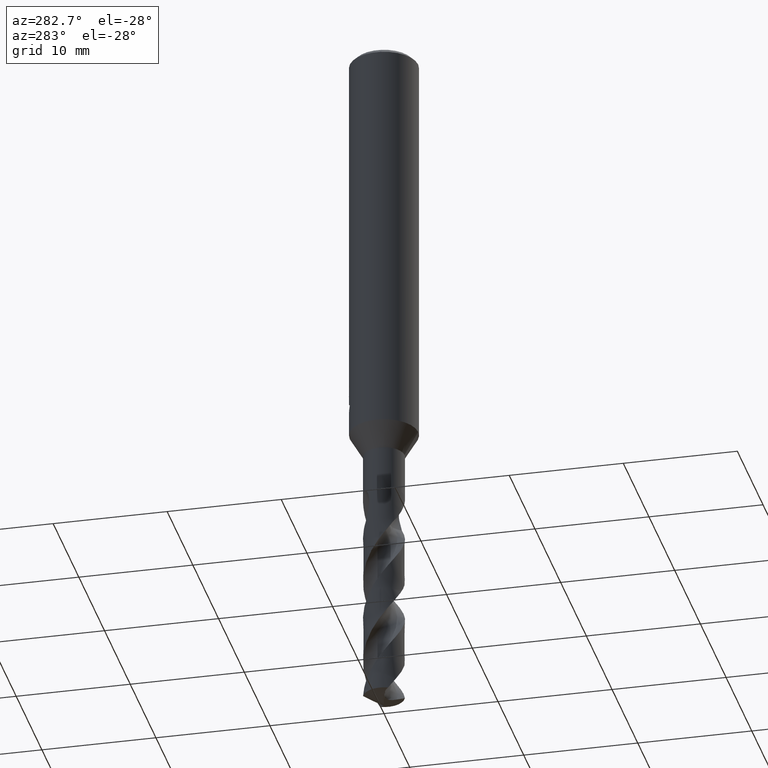
[diagram: clean part render]
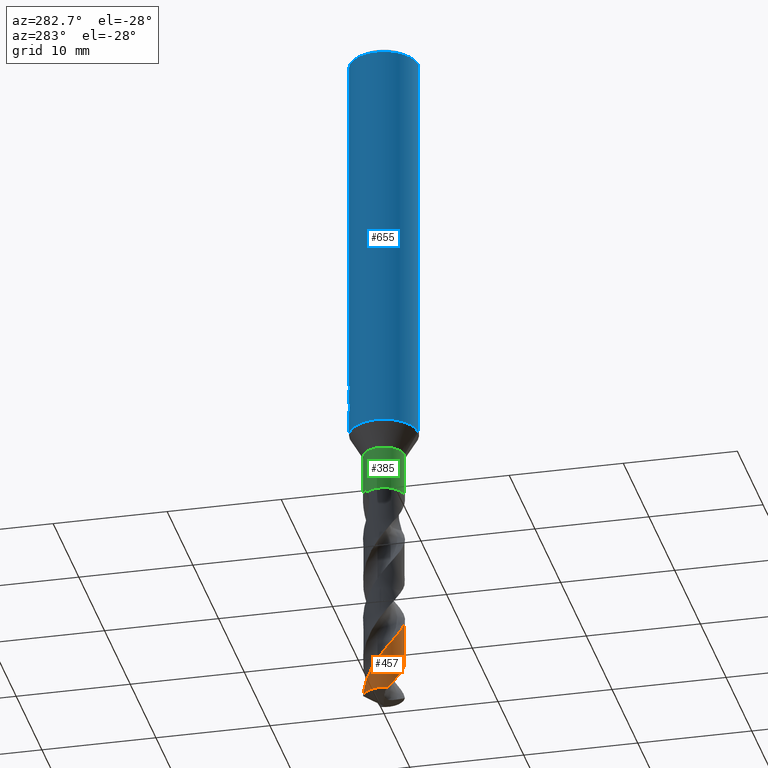
[diagram: same view with three faces highlighted in distinct colors, each labeled with its STEP entity id]
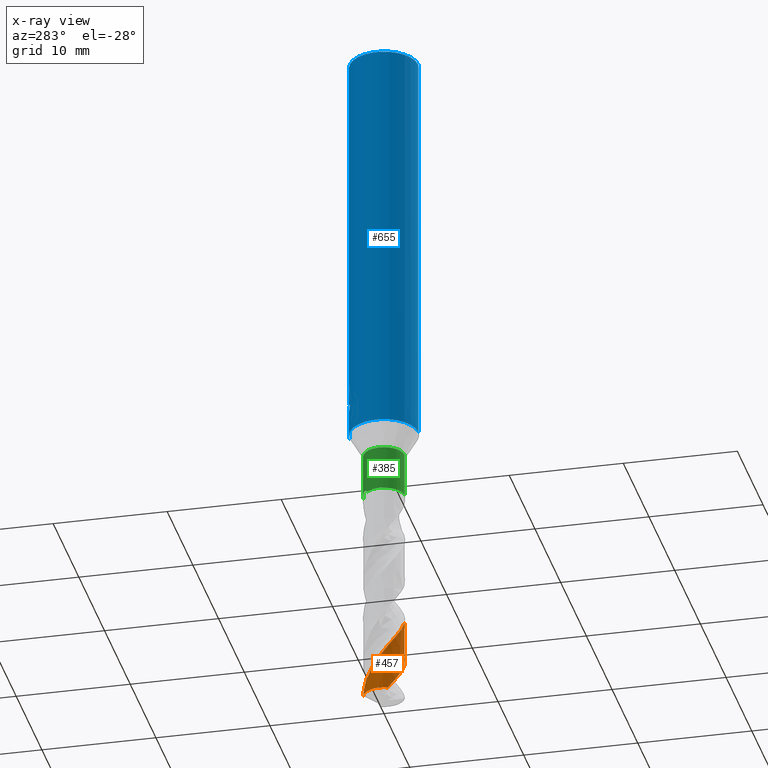
[diagram: x-ray of the same camera — body ghosted, the three highlighted faces saturated]
A machine part, auxiliary view with three faces highlighted in distinct colors.
The next image is the same camera in x-ray (body ghosted, the three faces saturated) — at least one of them is partly hidden behind the body in this view.
Their STEP definitions:

[orange] entity #457 — the highlighted conical surface has half-angle 0 deg.
#379=VERTEX_POINT('',#881);
#391=EDGE_CURVE('',#409,#709,#895,.T.);
#409=VERTEX_POINT('',#915);
#457=ADVANCED_FACE('',(#966),#967,.T.);
#617=EDGE_CURVE('',#653,#409,#1139,.T.);
#653=VERTEX_POINT('',#1177);
#663=EDGE_CURVE('',#653,#379,#1189,.T.);
#687=EDGE_CURVE('',#709,#379,#1216,.T.);
#709=VERTEX_POINT('',#1240);
#881=CARTESIAN_POINT('',(-0.580592727958854,1.703793439429,-61.3448535783208));
#895=LINE('',#2344,#2345);
#915=CARTESIAN_POINT('',(1.54432829102446E-013,-1.79998520870991,-58.4835001682653));
#966=FACE_OUTER_BOUND('',#2659,.T.);
#967=CONICAL_SURFACE('',#2660,1.79995,5.16933351778713E-006);
#1139=B_SPLINE_CURVE_WITH_KNOTS('',3,(#3546,#3547,#3548,#3549,#3550,#3551,#3552,#3553,#3554,#3555,#3556,#3557,#3558,#3559,#3560,#3561,#3562,#3563,#3564,#3565,#3566,#3567,#3568,#3569,#3570,#3571,#3572,#3573,#3574,#3575,#3576,#3577,#3578,#3579,#3580,#3581,#3582,#3583,#3584,#3585,#3586,#3587,#3588,#3589,#3590,#3591,#3592,#3593,#3594,#3595,#3596,#3597,#3598,#3599,#3600,#3601,#3602,#3603,#3604,#3605,#3606,#3607,#3608,#3609,#3610,#3611,#3612,#3613,#3614,#3615,#3616,#3617,#3618,#3619,#3620,#3621,#3622,#3623,#3624,#3625,#3626,#3627,#3628,#3629,#3630,#3631),.UNSPECIFIED.,.F.,.F.,(4,2,2,2,2,2,2,2,2,2,2,2,2,2,2,2,2,2,2,2,2,2,2,2,2,2,2,2,2,2,2,2,2,2,2,2,2,2,2,2,2,2,4),(0.0,1.12411938036322,1.49324315704113,1.74453484574494,1.94282180091867,3.12705528991454,3.33654301239007,3.95056891416491,4.29934719736765,4.79735921376205,5.45424133829332,6.06638189493079,6.68732988189182,7.03621234367762,7.5130802149083,8.51715431163137,8.61247286430807,9.8791590155175,9.97483264010817,11.2588728954634,11.3581590474799,12.023501562368,12.3548440012357,12.8572270642529,13.5478783817825,14.2140701310191,14.8728094680683,15.1574742927351,15.5829827516386,16.1999208734387,16.9304378066444,18.6258990346717,18.8534289403823,19.1928745820494,19.5643500056512,19.8131056433637,20.0457090619538,20.178211271906,20.2571943623207,20.3322287400588,20.43500247704,20.6530979104347,20.9221348459928),.UNSPECIFIED.);
#1177=CARTESIAN_POINT('',(-1.64813797036207,-0.723630589908135,-61.3448535783208));
#1189=CIRCLE('',#3716,1.8);
#1216=B_SPLINE_CURVE_WITH_KNOTS('',3,(#4371,#4372,#4373,#4374,#4375,#4376,#4377,#4378,#4379,#4380,#4381,#4382,#4383,#4384,#4385,#4386,#4387,#4388,#4389,#4390,#4391,#4392,#4393,#4394,#4395,#4396,#4397,#4398,#4399,#4400,#4401,#4402,#4403,#4404,#4405,#4406,#4407,#4408,#4409,#4410,#4411,#4412,#4413,#4414,#4415,#4416,#4417,#4418,#4419,#4420,#4421,#4422,#4423,#4424,#4425,#4426,#4427,#4428,#4429,#4430,#4431,#4432,#4433,#4434,#4435,#4436,#4437,#4438,#4439,#4440,#4441,#4442,#4443,#4444,#4445,#4446,#4447,#4448,#4449,#4450,#4451,#4452,#4453,#4454,#4455,#4456,#4457,#4458,#4459,#4460,#4461,#4462),.UNSPECIFIED.,.F.,.F.,(4,2,2,2,2,2,2,2,2,2,2,2,2,2,2,2,2,2,2,2,2,2,2,2,2,2,2,2,2,2,2,2,2,2,2,2,2,2,2,2,2,2,2,2,2,4),(0.0,0.0801275728356934,0.130640581271298,0.152770367560535,0.364242791769353,0.436986929266372,0.483223075265851,0.526425984111781,0.584005423472898,0.64787631398162,0.711979466175985,0.937580127871979,1.09061263745437,1.24729845891459,1.41532175623204,1.85228257452561,2.28668484765657,3.88904521678665,4.19995671742326,4.83198279183286,5.34008231756774,5.41199511941395,6.4894051909236,6.86720263610227,7.52038772077632,8.02813889238809,8.06407526817173,9.08928789291321,9.5281073355874,10.1611718763682,11.1740732910324,11.6763649494397,12.6696582946601,13.1752127393228,13.5562524910559,14.2031650488221,14.7103302923921,14.7829546060452,15.8480917383284,16.230617229164,16.8729634825393,17.804559745901,18.4974868234268,19.0192346383442,19.806682905026,20.6024096482353),.UNSPECIFIED.);
#1240=CARTESIAN_POINT('',(1.93326473997876E-011,-1.79996406285208,-54.3928649318378));
#2344=CARTESIAN_POINT('',(2.23653047416734E-016,-1.79995,-51.6724267891604));
#2345=VECTOR('',#5316,1.0);
#2659=EDGE_LOOP('',(#5398,#5399,#5400,#5401));
#2660=AXIS2_PLACEMENT_3D('',#5402,#5403,#5404);
#3546=CARTESIAN_POINT('',(-1.64813797036206,-0.723630589908148,-61.3448535783208));
#3547=CARTESIAN_POINT('',(-1.55907774788649,-0.92646988992758,-61.0426459900695));
#3548=CARTESIAN_POINT('',(-1.43361391478408,-1.11064020517116,-60.7372898041585));
#3549=CARTESIAN_POINT('',(-1.22702119732803,-1.31896174919522,-60.3355519989796));
#3550=CARTESIAN_POINT('',(-1.17289139852565,-1.36731948228192,-60.236534160926));
#3551=CARTESIAN_POINT('',(-1.0772716460219,-1.44287860706178,-60.0696093073097));
#3552=CARTESIAN_POINT('',(-1.03736579050346,-1.47182444548981,-60.0020378104356));
#3553=CARTESIAN_POINT('',(-0.964069567802687,-1.52054246158198,-59.8808563086614));
#3554=CARTESIAN_POINT('',(-0.93113180372499,-1.54092981920663,-59.8272911324396));
#3555=CARTESIAN_POINT('',(-0.69711010113258,-1.67555463476553,-59.4549919737755));
#3556=CARTESIAN_POINT('',(-0.476568229454699,-1.75104681221587,-59.1447401808734));
#3557=CARTESIAN_POINT('',(-0.207389769483681,-1.7884658751184,-58.7698019530655));
#3558=CARTESIAN_POINT('',(-0.166796640270785,-1.79270907325249,-58.7133098845063));
#3559=CARTESIAN_POINT('',(-0.00626075828157309,-1.80396947871984,-58.49145692073));
#3560=CARTESIAN_POINT('',(0.114251174413892,-1.80039820326396,-58.3273866342543));
#3561=CARTESIAN_POINT('',(0.301744093499417,-1.77583271316578,-58.0688170313883));
#3562=CARTESIAN_POINT('',(0.36901159383645,-1.76307552141418,-57.9753343367017));
#3563=CARTESIAN_POINT('',(0.529958997167464,-1.72296049452636,-57.747603781038));
#3564=CARTESIAN_POINT('',(0.6223506812157,-1.69177452946414,-57.6128203544186));
#3565=CARTESIAN_POINT('',(0.829853683870008,-1.602429315277,-57.3022338101806));
#3566=CARTESIAN_POINT('',(0.942227235901725,-1.53906640147755,-57.1271909055034));
#3567=CARTESIAN_POINT('',(1.14466643691986,-1.39429773520166,-56.7865306581728));
#3568=CARTESIAN_POINT('',(1.2348746106617,-1.31500729795,-56.6212696612529));
#3569=CARTESIAN_POINT('',(1.39887324829514,-1.13917509743918,-56.290217351832));
#3570=CARTESIAN_POINT('',(1.47246885862468,-1.04236222166026,-56.1248811290354));
#3571=CARTESIAN_POINT('',(1.5714856640054,-0.880339030140718,-55.8651874296132));
#3572=CARTESIAN_POINT('',(1.60369860560651,-0.820171623670064,-55.7719321673608));
#3573=CARTESIAN_POINT('',(1.67158965301551,-0.674046371438702,-55.5504194922057));
#3574=CARTESIAN_POINT('',(1.70417574237739,-0.586812835556721,-55.4216883117955));
#3575=CARTESIAN_POINT('',(1.78408656194754,-0.308828228461722,-55.0242991885647));
#3576=CARTESIAN_POINT('',(1.80700792806774,-0.113051385317736,-54.7601235778661));
#3577=CARTESIAN_POINT('',(1.79724253670254,0.100674314416281,-54.464797842195));
#3578=CARTESIAN_POINT('',(1.79611198269064,0.119145258823308,-54.4391911753532));
#3579=CARTESIAN_POINT('',(1.77589961882218,0.382759052938424,-54.0739117752759));
#3580=CARTESIAN_POINT('',(1.70713412242742,0.621195261158978,-53.7447950254864));
#3581=CARTESIAN_POINT('',(1.58406131081425,0.854953641921537,-53.3800619306313));
#3582=CARTESIAN_POINT('',(1.57518603792353,0.871196620125842,-53.354447770689));
#3583=CARTESIAN_POINT('',(1.44346459283544,1.10367178745066,-52.985340507672));
#3584=CARTESIAN_POINT('',(1.27758639211249,1.29199537482523,-52.6527761163337));
#3585=CARTESIAN_POINT('',(1.06348167000705,1.45231079658459,-52.2832415320888));
#3586=CARTESIAN_POINT('',(1.04793811510445,1.46356683984874,-52.2566917113052));
#3587=CARTESIAN_POINT('',(0.926360997996077,1.54866292825599,-52.0518136932591));
#3588=CARTESIAN_POINT('',(0.812630771308074,1.61131196435716,-51.8751696191065));
#3589=CARTESIAN_POINT('',(0.633043546631002,1.68619657055166,-51.6090953218797));
#3590=CARTESIAN_POINT('',(0.572105210489127,1.70782878245848,-51.5207987404292));
#3591=CARTESIAN_POINT('',(0.416352232751806,1.75386480704476,-51.2979778131649));
#3592=CARTESIAN_POINT('',(0.320616441671899,1.77384809253672,-51.1628550080548));
#3593=CARTESIAN_POINT('',(0.0906912718115085,1.80265765319494,-50.8440480833338));
#3594=CARTESIAN_POINT('',(-0.0440361777720671,1.8044299102622,-50.6613287782073));
#3595=CARTESIAN_POINT('',(-0.307087728698379,1.77829614584792,-50.2995364678267));
#3596=CARTESIAN_POINT('',(-0.434201365832459,1.7515558050323,-50.1208102855282));
#3597=CARTESIAN_POINT('',(-0.67850276396783,1.67204507229003,-49.7673738095596));
#3598=CARTESIAN_POINT('',(-0.795580443932835,1.61964522258583,-49.5932281148711));
#3599=CARTESIAN_POINT('',(-0.954122997688022,1.52724974481075,-49.3421001825572));
#3600=CARTESIAN_POINT('',(-1.00057374278275,1.49722200322002,-49.266393213726));
#3601=CARTESIAN_POINT('',(-1.1126578389655,1.41724053350639,-49.0770273807366));
#3602=CARTESIAN_POINT('',(-1.17634444146857,1.36484337336488,-48.9629565202176));
#3603=CARTESIAN_POINT('',(-1.32331998656484,1.22593351275078,-48.6849245497431));
#3604=CARTESIAN_POINT('',(-1.4020038617771,1.13514617396907,-48.5217411879596));
#3605=CARTESIAN_POINT('',(-1.55306036925771,0.920848946939103,-48.1630825238164));
#3606=CARTESIAN_POINT('',(-1.62070925298458,0.795633677827889,-47.9674564492609));
#3607=CARTESIAN_POINT('',(-1.79394308137507,0.359351703532186,-47.3212522313856));
#3608=CARTESIAN_POINT('',(-1.82916127274988,0.0274158912374177,-46.8842788998041));
#3609=CARTESIAN_POINT('',(-1.76838534328388,-0.338317881233773,-46.3720098597111));
#3610=CARTESIAN_POINT('',(-1.75964601977304,-0.381170905024912,-46.3112432143355));
#3611=CARTESIAN_POINT('',(-1.73390115264819,-0.487430986923653,-46.1602724415822));
#3612=CARTESIAN_POINT('',(-1.71493022078593,-0.550576660948558,-46.0700944747612));
#3613=CARTESIAN_POINT('',(-1.66759310957754,-0.681263887643777,-45.8821353355285));
#3614=CARTESIAN_POINT('',(-1.63974934449616,-0.745603993135924,-45.7900436504507));
#3615=CARTESIAN_POINT('',(-1.58674071287272,-0.850999591570335,-45.6305203984968));
#3616=CARTESIAN_POINT('',(-1.56416338479961,-0.891734079052297,-45.5664056230913));
#3617=CARTESIAN_POINT('',(-1.51840729235638,-0.967455973217168,-45.4404579157813));
#3618=CARTESIAN_POINT('',(-1.49554078211119,-1.00235338128326,-45.3792260572209));
#3619=CARTESIAN_POINT('',(-1.45883778533634,-1.05452801995454,-45.2814146510169));
#3620=CARTESIAN_POINT('',(-1.45015563457819,-1.06640094373626,-45.2576599033874));
#3621=CARTESIAN_POINT('',(-1.42950922616035,-1.09378567123989,-45.2059171814158));
#3622=CARTESIAN_POINT('',(-1.42155865067872,-1.10410440490966,-45.1867678472282));
#3623=CARTESIAN_POINT('',(-1.40552953027712,-1.12443070231839,-45.1497093087356));
#3624=CARTESIAN_POINT('',(-1.39749099480729,-1.1344104828473,-45.1318178719731));
#3625=CARTESIAN_POINT('',(-1.37784882043911,-1.15825253757473,-45.0897592135649));
#3626=CARTESIAN_POINT('',(-1.36605141261273,-1.17215534179693,-45.06577188255));
#3627=CARTESIAN_POINT('',(-1.32769364099066,-1.21593189806655,-44.9917524974143));
#3628=CARTESIAN_POINT('',(-1.29960810623403,-1.24601467028369,-44.943056143609));
#3629=CARTESIAN_POINT('',(-1.23169083818281,-1.31355582956116,-44.837019249382));
#3630=CARTESIAN_POINT('',(-1.19104119266214,-1.35069751416398,-44.7809382177849));
#3631=CARTESIAN_POINT('',(-1.14696331556465,-1.38714307159205,-44.7266));
#3716=AXIS2_PLACEMENT_3D('',#5644,#5645,#5646);
#4371=CARTESIAN_POINT('',(-1.25107846384555,1.29402218899784,-44.7266));
#4372=CARTESIAN_POINT('',(-1.24027997315074,1.30446247723825,-44.7486856030282));
#4373=CARTESIAN_POINT('',(-1.22931985899429,1.31479805987491,-44.770741940663));
#4374=CARTESIAN_POINT('',(-1.21112952030387,1.33152123625317,-44.8066507058394));
#4375=CARTESIAN_POINT('',(-1.20402683326182,1.33794784889731,-44.8205053007073));
#4376=CARTESIAN_POINT('',(-1.19369278018802,1.34714816521415,-44.840408565273));
#4377=CARTESIAN_POINT('',(-1.19053018046315,1.34994398135344,-44.8464661610803));
#4378=CARTESIAN_POINT('',(-1.15697992201892,1.37939290758704,-44.9103678385539));
#4379=CARTESIAN_POINT('',(-1.12574948806274,1.40503159711375,-44.9667047948314));
#4380=CARTESIAN_POINT('',(-1.08132242832629,1.43897296937848,-45.0429731437794));
#4381=CARTESIAN_POINT('',(-1.06981352638825,1.44755102496615,-45.0624129704402));
#4382=CARTESIAN_POINT('',(-1.05073363354246,1.46141726782043,-45.0941929911817));
#4383=CARTESIAN_POINT('',(-1.04326662140661,1.4667573666756,-45.1065212586565));
#4384=CARTESIAN_POINT('',(-1.02871559874037,1.47699571458388,-45.1303615402892));
#4385=CARTESIAN_POINT('',(-1.0216450275926,1.48189543218479,-45.1418635278364));
#4386=CARTESIAN_POINT('',(-1.00505162866476,1.4932186458541,-45.1686943669944));
#4387=CARTESIAN_POINT('',(-0.995507011768867,1.49959891529972,-45.1840046647025));
#4388=CARTESIAN_POINT('',(-0.975243171108675,1.5128657789001,-45.2163207799261));
#4389=CARTESIAN_POINT('',(-0.964525549533127,1.51972105296408,-45.2333035952023));
#4390=CARTESIAN_POINT('',(-0.942935684377382,1.53321091839622,-45.2673948177004));
#4391=CARTESIAN_POINT('',(-0.932181788504982,1.53977270350674,-45.2843314228932));
#4392=CARTESIAN_POINT('',(-0.882805814234656,1.56919078380765,-45.3620438079946));
#4393=CARTESIAN_POINT('',(-0.843737429614365,1.59052298104124,-45.4232076540324));
#4394=CARTESIAN_POINT('',(-0.777391191302479,1.6236585127211,-45.5256396948722));
#4395=CARTESIAN_POINT('',(-0.750263648624428,1.63637008695651,-45.5671377068432));
#4396=CARTESIAN_POINT('',(-0.69477608754419,1.66070275909973,-45.651020383976));
#4397=CARTESIAN_POINT('',(-0.666350073345946,1.67231339256699,-45.6934815636537));
#4398=CARTESIAN_POINT('',(-0.606751035829838,1.6948897122226,-45.7812983847883));
#4399=CARTESIAN_POINT('',(-0.575719031953793,1.70568057624154,-45.8262998629498));
#4400=CARTESIAN_POINT('',(-0.462544629126563,1.74158578142141,-45.9888747946772));
#4401=CARTESIAN_POINT('',(-0.379088455427082,1.76163305914027,-46.1057598569263));
#4402=CARTESIAN_POINT('',(-0.210515162809677,1.78959802250242,-46.3400333641579));
#4403=CARTESIAN_POINT('',(-0.125714246723434,1.79753673626182,-46.4571726928985));
#4404=CARTESIAN_POINT('',(0.272565774571205,1.80656304044718,-47.0051248461491));
#4405=CARTESIAN_POINT('',(0.582677163669993,1.73170316361575,-47.4278651026435));
#4406=CARTESIAN_POINT('',(0.912150075500356,1.55288241310251,-47.9420120771048));
#4407=CARTESIAN_POINT('',(0.964134349643687,1.52114983345936,-48.0255148732838));
#4408=CARTESIAN_POINT('',(1.11652214052572,1.41718865794256,-48.2791380234444));
#4409=CARTESIAN_POINT('',(1.21127928594,1.33711923303439,-48.4489430878359));
#4410=CARTESIAN_POINT('',(1.36610806294819,1.1761883757985,-48.75546117606));
#4411=CARTESIAN_POINT('',(1.4290602482175,1.09885022034302,-48.891629060111));
#4412=CARTESIAN_POINT('',(1.49327020872929,1.00504422136788,-49.0474994326812));
#4413=CARTESIAN_POINT('',(1.5010915339852,0.993324841130369,-49.0668211680548));
#4414=CARTESIAN_POINT('',(1.62388653655451,0.80456843900387,-49.3758203885027));
#4415=CARTESIAN_POINT('',(1.70705542658564,0.608591173500975,-49.6642722627178));
#4416=CARTESIAN_POINT('',(1.77089672056618,0.330459389006471,-50.0555433257593));
#4417=CARTESIAN_POINT('',(1.78298521001172,0.257353129290507,-50.1569468416767));
#4418=CARTESIAN_POINT('',(1.8035999081013,0.0564841602595887,-50.4344024448235));
#4419=CARTESIAN_POINT('',(1.80306146960774,-0.0718773539759362,-50.6099825883865));
#4420=CARTESIAN_POINT('',(1.77788320827086,-0.298069436001126,-50.9223133860093));
#4421=CARTESIAN_POINT('',(1.758682554073,-0.395927779319998,-51.0584938044839));
#4422=CARTESIAN_POINT('',(1.7295569126317,-0.498491573460314,-51.2047274072979));
#4423=CARTESIAN_POINT('',(1.7275924330117,-0.505257877377468,-51.2143916477592));
#4424=CARTESIAN_POINT('',(1.66840227081449,-0.704745699690844,-51.4998987247195));
#4425=CARTESIAN_POINT('',(1.57926666135973,-0.886692270422783,-51.7749678868059));
#4426=CARTESIAN_POINT('',(1.41163726958623,-1.12005648430381,-52.1689502920746));
#4427=CARTESIAN_POINT('',(1.35647417462525,-1.18625886668505,-52.2867267828357));
#4428=CARTESIAN_POINT('',(1.21074840916992,-1.33765769818534,-52.5754130267082));
#4429=CARTESIAN_POINT('',(1.11562485281688,-1.41797258877119,-52.7457724443571));
#4430=CARTESIAN_POINT('',(0.848701123769507,-1.59970082643918,-53.1889918377442));
#4431=CARTESIAN_POINT('',(0.66711347020152,-1.68351672253562,-53.4594121475296));
#4432=CARTESIAN_POINT('',(0.38068494713536,-1.761996755098,-53.8676128596576));
#4433=CARTESIAN_POINT('',(0.283692882374468,-1.78019711190531,-54.002667726906));
#4434=CARTESIAN_POINT('',(-0.00829648629090884,-1.81047319803751,-54.4052824610058));
#4435=CARTESIAN_POINT('',(-0.204121966597569,-1.79892881996381,-54.6712144494556));
#4436=CARTESIAN_POINT('',(-0.490888836109649,-1.73457154250139,-55.0749468080224));
#4437=CARTESIAN_POINT('',(-0.585713077924323,-1.70489804761957,-55.2107723943971));
#4438=CARTESIAN_POINT('',(-0.746968443232303,-1.63936716658188,-55.4494183896481));
#4439=CARTESIAN_POINT('',(-0.814397092613209,-1.60693260953116,-55.5517905927933));
#4440=CARTESIAN_POINT('',(-0.99026340093244,-1.50843216362092,-55.8287315705348));
#4441=CARTESIAN_POINT('',(-1.09413211677815,-1.434884856726,-56.0028345646159));
#4442=CARTESIAN_POINT('',(-1.26413173513083,-1.28521766504058,-56.3136743945243));
#4443=CARTESIAN_POINT('',(-1.33326737773708,-1.21335141645174,-56.4498566137454));
#4444=CARTESIAN_POINT('',(-1.40511646764783,-1.12506125472204,-56.6059742084144));
#4445=CARTESIAN_POINT('',(-1.41398141273816,-1.11389941508282,-56.6255259230054));
#4446=CARTESIAN_POINT('',(-1.5507744055079,-0.937399827261559,-56.9320152194358));
#4447=CARTESIAN_POINT('',(-1.64917661896449,-0.750955585474589,-57.2177628447105));
#4448=CARTESIAN_POINT('',(-1.73636596541471,-0.48022094166484,-57.607724608749));
#4449=CARTESIAN_POINT('',(-1.75488498473826,-0.407364727383775,-57.7105714462325));
#4450=CARTESIAN_POINT('',(-1.79216083580235,-0.209729569420195,-57.9868881270495));
#4451=CARTESIAN_POINT('',(-1.80245783696777,-0.0836850975501078,-58.1598958509633));
#4452=CARTESIAN_POINT('',(-1.79517104991919,0.225362787820108,-58.5841348364943));
#4453=CARTESIAN_POINT('',(-1.76299388526116,0.4064619120893,-58.8332487263245));
#4454=CARTESIAN_POINT('',(-1.66038530358428,0.708211517284509,-59.2713983407626));
#4455=CARTESIAN_POINT('',(-1.60214312845797,0.831650797378466,-59.4576129720634));
#4456=CARTESIAN_POINT('',(-1.47650915677744,1.03460301917693,-59.784935270995));
#4457=CARTESIAN_POINT('',(-1.41523180391952,1.11694998150334,-59.9252314559151));
#4458=CARTESIAN_POINT('',(-1.2448569225695,1.30927228921115,-60.2782926668155));
#4459=CARTESIAN_POINT('',(-1.12781808577772,1.41137370641141,-60.4897249391201));
#4460=CARTESIAN_POINT('',(-0.86891792692422,1.58412294119532,-60.9162754521077));
#4461=CARTESIAN_POINT('',(-0.728215360799584,1.65348767870022,-61.1301272405968));
#4462=CARTESIAN_POINT('',(-0.580592727958881,1.70379343942899,-61.3448535783208));
#5316=DIRECTION('',(-6.33039867088091E-022,5.16933351776411E-006,0.999999999986639));
#5398=ORIENTED_EDGE('',*,*,#391,.T.);
#5399=ORIENTED_EDGE('',*,*,#687,.T.);
#5400=ORIENTED_EDGE('',*,*,#663,.F.);
#5401=ORIENTED_EDGE('',*,*,#617,.T.);
#5402=CARTESIAN_POINT('',(0.0,0.0,-51.6724267891604));
#5403=DIRECTION('',(0.0,-0.0,-1.0));
#5404=DIRECTION('',(0.0,1.0,0.0));
#5644=CARTESIAN_POINT('',(0.0,0.0,-61.3448535783208));
#5645=DIRECTION('',(0.0,0.0,-1.0));
#5646=DIRECTION('',(0.0,1.0,0.0));

[blue] entity #655 — the highlighted cylindrical surface (edge-blend (fillet) strip) has radius 3 mm, axis along (-0, -0, 1).
#271=VERTEX_POINT('',#762);
#279=EDGE_CURVE('',#641,#293,#771,.T.);
#293=VERTEX_POINT('',#785);
#295=VERTEX_POINT('',#787);
#317=EDGE_CURVE('',#461,#441,#810,.T.);
#333=EDGE_CURVE('',#271,#295,#831,.T.);
#353=VERTEX_POINT('',#853);
#359=EDGE_CURVE('',#691,#657,#859,.T.);
#367=EDGE_CURVE('',#555,#691,#868,.T.);
#413=VERTEX_POINT('',#919);
#415=EDGE_CURVE('',#295,#443,#921,.T.);
#441=VERTEX_POINT('',#950);
#443=VERTEX_POINT('',#952);
#449=EDGE_CURVE('',#353,#461,#958,.T.);
#461=VERTEX_POINT('',#971);
#471=EDGE_CURVE('',#441,#555,#982,.T.);
#477=EDGE_CURVE('',#293,#271,#988,.T.);
#515=EDGE_CURVE('',#413,#353,#1030,.T.);
#521=EDGE_CURVE('',#641,#657,#1036,.T.);
#555=VERTEX_POINT('',#1072);
#641=VERTEX_POINT('',#1164);
#655=ADVANCED_FACE('',(#1179),#1180,.T.);
#657=VERTEX_POINT('',#1182);
#681=EDGE_CURVE('',#443,#413,#1210,.T.);
#691=VERTEX_POINT('',#1220);
#762=CARTESIAN_POINT('',(0.0,3.0,-0.399999999999999));
#771=LINE('',#1299,#1300);
#785=CARTESIAN_POINT('',(3.67381906146713E-016,-3.0,-0.399999999999999));
#787=CARTESIAN_POINT('',(-1.20768269592175E-015,3.0,-32.0232688117743));
#810=LINE('',#2138,#2139);
#831=LINE('',#2202,#2203);
#853=CARTESIAN_POINT('',(-1.0350734039088,2.81578107254819,-31.3171221986971));
#859=LINE('',#2241,#2242);
#868=B_SPLINE_CURVE_WITH_KNOTS('',3,(#2254,#2255,#2256,#2257,#2258,#2259,#2260,#2261,#2262,#2263,#2264,#2265,#2266,#2267,#2268,#2269),.UNSPECIFIED.,.F.,.F.,(4,2,2,2,2,2,2,4),(5.66023402257373,6.29060333517104,6.60504483258975,6.91948633000846,7.23392782742717,7.54836932484587,7.86141901111221,8.17446869737855),.UNSPECIFIED.);
#919=CARTESIAN_POINT('',(-0.562333990228013,2.94682549253162,-31.3171221986971));
#921=B_SPLINE_CURVE_WITH_KNOTS('',3,(#2390,#2391,#2392,#2393,#2394,#2395,#2396,#2397,#2398,#2399,#2400,#2401,#2402,#2403,#2404,#2405,#2406,#2407,#2408,#2409,#2410,#2411,#2412,#2413,#2414,#2415,#2416),.UNSPECIFIED.,.F.,.F.,(4,2,3,2,2,2,2,2,2,2,2,2,4),(-0.54422824842136,-0.27211412421068,0.0,0.272114124210678,0.544228248421357,0.817906359646673,1.09158447087199,1.36255924571499,1.63353402055798,1.90530456554772,2.17707511053746,2.4488456555272,2.72061620051693),.UNSPECIFIED.);
#950=CARTESIAN_POINT('',(-3.67366600472444E-016,3.0,-32.7128911336578));
#952=CARTESIAN_POINT('',(-0.486378944383045,2.96031003823262,-31.6432837483006));
#958=B_SPLINE_CURVE_WITH_KNOTS('',3,(#2546,#2547,#2548,#2549,#2550,#2551,#2552,#2553,#2554,#2555,#2556,#2557,#2558,#2559),.UNSPECIFIED.,.F.,.F.,(4,2,2,2,2,2,4),(3.16026050654945,3.61086409539206,4.06146768423468,4.51207127307729,4.95991823802074,5.40776520296419,5.86282890530594),.UNSPECIFIED.);
#971=CARTESIAN_POINT('',(-2.06254272401587E-016,3.0,-32.5000801551881));
#982=ELLIPSE('',#2680,3.34478529612858,3.0);
#988=CIRCLE('',#2690,3.0);
#1030=CIRCLE('',#2894,3.0);
#1036=CIRCLE('',#2903,3.0);
#1072=CARTESIAN_POINT('',(-1.337052752443,2.68557069115386,-33.3720803908795));
#1164=CARTESIAN_POINT('',(3.67381906146713E-016,-3.0,-36.0));
#1179=FACE_OUTER_BOUND('',#3685,.T.);
#1180=CYLINDRICAL_SURFACE('',#3686,3.0);
#1182=CARTESIAN_POINT('',(0.0,3.0,-36.0));
#1210=B_SPLINE_CURVE_WITH_KNOTS('',3,(#4336,#4337,#4338,#4339,#4340,#4341,#4342,#4343,#4344,#4345,#4346,#4347,#4348,#4349,#4350,#4351,#4352,#4353,#4354,#4355,#4356,#4357,#4358,#4359,#4360,#4361,#4362),.UNSPECIFIED.,.F.,.F.,(4,2,3,2,2,2,2,2,2,2,2,2,4),(-0.54422824842136,-0.27211412421068,0.0,0.272114124210678,0.544228248421357,0.817906359646673,1.09158447087199,1.36255924571499,1.63353402055798,1.90530456554772,2.17707511053746,2.4488456555272,2.72061620051693),.UNSPECIFIED.);
#1220=CARTESIAN_POINT('',(-2.46407913303377E-016,3.0,-34.0310253601033));
#1299=CARTESIAN_POINT('',(3.67381906146713E-016,-3.0,-18.2));
#1300=VECTOR('',#5183,1.0);
#2138=CARTESIAN_POINT('',(-3.67381906146713E-016,3.0,-18.2));
#2139=VECTOR('',#5204,1.0);
#2202=CARTESIAN_POINT('',(-3.67381906146713E-016,3.0,-18.2));
#2203=VECTOR('',#5246,1.0);
#2241=CARTESIAN_POINT('',(-3.67381906146713E-016,3.0,-18.2));
#2242=VECTOR('',#5275,1.0);
#2254=CARTESIAN_POINT('',(-1.53050642192579,2.58022287650581,-33.0319811255889));
#2255=CARTESIAN_POINT('',(-1.44691631248335,2.62980577312329,-33.2314887010961));
#2256=CARTESIAN_POINT('',(-1.32276760444366,2.69707077181617,-33.4113258593841));
#2257=CARTESIAN_POINT('',(-1.10973155101076,2.78826898930335,-33.6245951706909));
#2258=CARTESIAN_POINT('',(-1.02948996220254,2.81934349084513,-33.6916117853674));
#2259=CARTESIAN_POINT('',(-0.853932698223484,2.87738531454781,-33.8105216600777));
#2260=CARTESIAN_POINT('',(-0.758609991487907,2.90431263574779,-33.8624240602539));
#2261=CARTESIAN_POINT('',(-0.558469552260235,2.94934446690523,-33.9464055954533));
#2262=CARTESIAN_POINT('',(-0.453457041446381,2.96746268462387,-33.9785511641911));
#2263=CARTESIAN_POINT('',(-0.240810292537893,2.99223469602914,-34.0209924679526));
#2264=CARTESIAN_POINT('',(-0.133171317626829,2.99887501234033,-34.0312723335086));
#2265=CARTESIAN_POINT('',(0.0759830626177195,3.00085245803086,-34.0312723335086));
#2266=CARTESIAN_POINT('',(0.183273473896684,2.99629272230549,-34.0210815541729));
#2267=CARTESIAN_POINT('',(0.39543915272815,2.97573303917486,-33.9788816901513));
#2268=CARTESIAN_POINT('',(0.500318639064909,2.95974677710468,-33.9468871509919));
#2269=CARTESIAN_POINT('',(0.600330982089903,2.93932011049205,-33.9050368602192));
#2390=CARTESIAN_POINT('',(0.665621182276714,2.92522622060321,-30.8140957881762));
#2391=CARTESIAN_POINT('',(0.728850563417096,2.91083867849353,-30.877518087557));
#2392=CARTESIAN_POINT('',(0.783900459387161,2.89602337967411,-30.9578702196133));
#2393=CARTESIAN_POINT('',(0.857188692916628,2.87518328740958,-31.1345580124299));
#2394=CARTESIAN_POINT('',(0.875400981188567,2.86943777108584,-31.2309373045166));
#2395=CARTESIAN_POINT('',(0.875400981188567,2.86943777108584,-31.3216420125868));
#2396=CARTESIAN_POINT('',(0.875400981188567,2.86943777108584,-31.412346720657));
#2397=CARTESIAN_POINT('',(0.857188692916629,2.87518328740958,-31.5087260127437));
#2398=CARTESIAN_POINT('',(0.783900459387161,2.89602337967411,-31.6854138055602));
#2399=CARTESIAN_POINT('',(0.728850563417096,2.91083867849353,-31.7657659376165));
#2400=CARTESIAN_POINT('',(0.60202838769231,2.93969645569731,-31.8929750586276));
#2401=CARTESIAN_POINT('',(0.5214778595293,2.95568533572518,-31.9483797636259));
#2402=CARTESIAN_POINT('',(0.34429909105015,2.98152194310932,-32.0221641076746));
#2403=CARTESIAN_POINT('',(0.247628172090375,2.99115403786358,-32.0405166027747));
#2404=CARTESIAN_POINT('',(0.0663244946631877,3.00062654348629,-32.0405166027747));
#2405=CARTESIAN_POINT('',(-0.0299285908853379,3.00115720326599,-32.0224875186921));
#2406=CARTESIAN_POINT('',(-0.206881310600538,2.99416773126077,-31.949244373347));
#2407=CARTESIAN_POINT('',(-0.287593937381961,2.98687212067831,-31.8940404490632));
#2408=CARTESIAN_POINT('',(-0.415200117492864,2.97182576996222,-31.7666805419979));
#2409=CARTESIAN_POINT('',(-0.470604049431396,2.96309385107775,-31.6859121102136));
#2410=CARTESIAN_POINT('',(-0.544183869965539,2.95046729924835,-31.5086992019516));
#2411=CARTESIAN_POINT('',(-0.562348199187247,2.94682278104247,-31.41223219425));
#2412=CARTESIAN_POINT('',(-0.562348199187247,2.94682278104247,-31.2310518309235));
#2413=CARTESIAN_POINT('',(-0.54418386996554,2.95046729924835,-31.134584823222));
#2414=CARTESIAN_POINT('',(-0.4706040494314,2.96309385107775,-30.95737191496));
#2415=CARTESIAN_POINT('',(-0.415200117492863,2.97182576996222,-30.8766034831756));
#2416=CARTESIAN_POINT('',(-0.351303479704285,2.97935997575782,-30.812830162452));
#2546=CARTESIAN_POINT('',(-0.944028754947609,2.84759718180646,-30.87109591768));
#2547=CARTESIAN_POINT('',(-1.00479265183033,2.82745289805341,-31.0168616503562));
#2548=CARTESIAN_POINT('',(-1.03510901790186,2.81576798068631,-31.1761006644519));
#2549=CARTESIAN_POINT('',(-1.03510901790186,2.81576798068631,-31.4765030570137));
#2550=CARTESIAN_POINT('',(-1.00479265183033,2.82745289805341,-31.6357420711094));
#2551=CARTESIAN_POINT('',(-0.88326485806506,2.86774146555976,-31.9272735364618));
#2552=CARTESIAN_POINT('',(-0.792109261194285,2.89554580131596,-32.0596991578702));
#2553=CARTESIAN_POINT('',(-0.582867737485067,2.94478284423827,-32.2682275153448));
#2554=CARTESIAN_POINT('',(-0.450640829386874,2.96956027684007,-32.358826497016));
#2555=CARTESIAN_POINT('',(-0.159819744133953,2.99930375982357,-32.4794282329782));
#2556=CARTESIAN_POINT('',(-0.00114290335869099,3.00371168811663,-32.5093686300866));
#2557=CARTESIAN_POINT('',(0.299461057962613,2.98886806232847,-32.5093686300866));
#2558=CARTESIAN_POINT('',(0.459264276215476,2.96836791045541,-32.4785566268234));
#2559=CARTESIAN_POINT('',(0.604975334200916,2.93836771779988,-32.4175314011172));
#2680=AXIS2_PLACEMENT_3D('',#5417,#5418,#5419);
#2690=AXIS2_PLACEMENT_3D('',#5424,#5425,#5426);
#2894=AXIS2_PLACEMENT_3D('',#5486,#5487,#5488);
#2903=AXIS2_PLACEMENT_3D('',#5490,#5491,#5492);
#3685=EDGE_LOOP('',(#5621,#5622,#5623,#5624,#5625,#5626,#5627,#5628,#5629,#5630,#5631,#5632));
#3686=AXIS2_PLACEMENT_3D('',#5633,#5634,#5635);
#4336=CARTESIAN_POINT('',(0.665621182276714,2.92522622060321,-30.8140957881762));
#4337=CARTESIAN_POINT('',(0.728850563417096,2.91083867849353,-30.877518087557));
#4338=CARTESIAN_POINT('',(0.783900459387161,2.89602337967411,-30.9578702196133));
#4339=CARTESIAN_POINT('',(0.857188692916628,2.87518328740958,-31.1345580124299));
#4340=CARTESIAN_POINT('',(0.875400981188567,2.86943777108584,-31.2309373045166));
#4341=CARTESIAN_POINT('',(0.875400981188567,2.86943777108584,-31.3216420125868));
#4342=CARTESIAN_POINT('',(0.875400981188567,2.86943777108584,-31.412346720657));
#4343=CARTESIAN_POINT('',(0.857188692916629,2.87518328740958,-31.5087260127437));
#4344=CARTESIAN_POINT('',(0.783900459387161,2.89602337967411,-31.6854138055602));
#4345=CARTESIAN_POINT('',(0.728850563417096,2.91083867849353,-31.7657659376165));
#4346=CARTESIAN_POINT('',(0.60202838769231,2.93969645569731,-31.8929750586276));
#4347=CARTESIAN_POINT('',(0.5214778595293,2.95568533572518,-31.9483797636259));
#4348=CARTESIAN_POINT('',(0.34429909105015,2.98152194310932,-32.0221641076746));
#4349=CARTESIAN_POINT('',(0.247628172090375,2.99115403786358,-32.0405166027747));
#4350=CARTESIAN_POINT('',(0.0663244946631877,3.00062654348629,-32.0405166027747));
#4351=CARTESIAN_POINT('',(-0.0299285908853379,3.00115720326599,-32.0224875186921));
#4352=CARTESIAN_POINT('',(-0.206881310600538,2.99416773126077,-31.949244373347));
#4353=CARTESIAN_POINT('',(-0.287593937381961,2.98687212067831,-31.8940404490632));
#4354=CARTESIAN_POINT('',(-0.415200117492864,2.97182576996222,-31.7666805419979));
#4355=CARTESIAN_POINT('',(-0.470604049431396,2.96309385107775,-31.6859121102136));
#4356=CARTESIAN_POINT('',(-0.544183869965539,2.95046729924835,-31.5086992019516));
#4357=CARTESIAN_POINT('',(-0.562348199187247,2.94682278104247,-31.41223219425));
#4358=CARTESIAN_POINT('',(-0.562348199187247,2.94682278104247,-31.2310518309235));
#4359=CARTESIAN_POINT('',(-0.54418386996554,2.95046729924835,-31.134584823222));
#4360=CARTESIAN_POINT('',(-0.4706040494314,2.96309385107775,-30.95737191496));
#4361=CARTESIAN_POINT('',(-0.415200117492863,2.97182576996222,-30.8766034831756));
#4362=CARTESIAN_POINT('',(-0.351303479704285,2.97935997575782,-30.812830162452));
#5183=DIRECTION('',(-0.0,-0.0,1.0));
#5204=DIRECTION('',(0.0,0.0,-1.0));
#5246=DIRECTION('',(0.0,0.0,-1.0));
#5275=DIRECTION('',(0.0,0.0,-1.0));
#5417=CARTESIAN_POINT('',(0.0,0.0,-32.7128911336578));
#5418=DIRECTION('',(-0.442195774284071,0.0,0.896918556617774));
#5419=DIRECTION('',(0.896918556617774,-0.0,0.442195774284071));
#5424=CARTESIAN_POINT('',(0.0,0.0,-0.399999999999999));
#5425=DIRECTION('',(0.0,0.0,-1.0));
#5426=DIRECTION('',(0.0,1.0,0.0));
#5486=CARTESIAN_POINT('',(0.0,0.0,-31.3171221986971));
#5487=DIRECTION('',(0.0,-0.0,1.0));
#5488=DIRECTION('',(0.0,1.0,0.0));
#5490=CARTESIAN_POINT('',(0.0,0.0,-36.0));
#5491=DIRECTION('',(0.0,0.0,-1.0));
#5492=DIRECTION('',(0.0,1.0,0.0));
#5621=ORIENTED_EDGE('',*,*,#333,.T.);
#5622=ORIENTED_EDGE('',*,*,#415,.T.);
#5623=ORIENTED_EDGE('',*,*,#681,.T.);
#5624=ORIENTED_EDGE('',*,*,#515,.T.);
#5625=ORIENTED_EDGE('',*,*,#449,.T.);
#5626=ORIENTED_EDGE('',*,*,#317,.T.);
#5627=ORIENTED_EDGE('',*,*,#471,.T.);
#5628=ORIENTED_EDGE('',*,*,#367,.T.);
#5629=ORIENTED_EDGE('',*,*,#359,.T.);
#5630=ORIENTED_EDGE('',*,*,#521,.F.);
#5631=ORIENTED_EDGE('',*,*,#279,.T.);
#5632=ORIENTED_EDGE('',*,*,#477,.T.);
#5633=CARTESIAN_POINT('',(0.0,0.0,-18.2));
#5634=DIRECTION('',(-0.0,-0.0,1.0));
#5635=DIRECTION('',(0.0,1.0,0.0));

[green] entity #385 — the highlighted cylindrical surface (edge-blend (fillet) strip) has radius 1.8 mm, axis along (-0, -0, 1).
#269=VERTEX_POINT('',#760);
#355=VERTEX_POINT('',#855);
#385=ADVANCED_FACE('',(#888),#889,.T.);
#411=VERTEX_POINT('',#917);
#419=EDGE_CURVE('',#355,#541,#925,.T.);
#487=EDGE_CURVE('',#269,#629,#1000,.T.);
#509=EDGE_CURVE('',#355,#673,#1024,.T.);
#533=EDGE_CURVE('',#269,#541,#1048,.T.);
#541=VERTEX_POINT('',#1057);
#557=EDGE_CURVE('',#411,#629,#1074,.T.);
#629=VERTEX_POINT('',#1151);
#673=VERTEX_POINT('',#1201);
#699=EDGE_CURVE('',#673,#411,#1230,.T.);
#760=CARTESIAN_POINT('',(-0.616448164671872,1.69115098683491,-42.0));
#855=CARTESIAN_POINT('',(2.20429143688028E-016,-1.8,-42.0));
#888=FACE_OUTER_BOUND('',#2320,.T.);
#889=CYLINDRICAL_SURFACE('',#2321,1.8);
#917=CARTESIAN_POINT('',(0.0,1.8,-38.0784609690827));
#925=CIRCLE('',#2433,1.8);
#1000=CIRCLE('',#2724,1.8);
#1024=LINE('',#2800,#2801);
#1048=B_SPLINE_CURVE_WITH_KNOTS('',3,(#3022,#3023,#3024,#3025,#3026,#3027,#3028,#3029,#3030,#3031,#3032,#3033),.UNSPECIFIED.,.F.,.F.,(4,2,2,2,2,4),(0.0,0.338642702074881,0.544695434374056,0.714323512432213,0.883953178409015,1.06568958280745),.UNSPECIFIED.);
#1057=CARTESIAN_POINT('',(-1.36232813690845,1.17646166422351,-42.0));
#1074=LINE('',#3188,#3189);
#1151=CARTESIAN_POINT('',(-2.20429143688028E-016,1.8,-42.0));
#1201=CARTESIAN_POINT('',(2.20429143688028E-016,-1.8,-38.0784609690827));
#1230=CIRCLE('',#4907,1.8);
#2320=EDGE_LOOP('',(#5306,#5307,#5308,#5309,#5310,#5311));
#2321=AXIS2_PLACEMENT_3D('',#5312,#5313,#5314);
#2433=AXIS2_PLACEMENT_3D('',#5341,#5342,#5343);
#2724=AXIS2_PLACEMENT_3D('',#5447,#5448,#5449);
#2800=CARTESIAN_POINT('',(2.20429143688028E-016,-1.8,-40.0392304845413));
#2801=VECTOR('',#5485,1.0);
#3022=CARTESIAN_POINT('',(-0.61644816467187,1.69115098683491,-42.0));
#3023=CARTESIAN_POINT('',(-0.694640453767459,1.662648804901,-41.9237393332579));
#3024=CARTESIAN_POINT('',(-0.782105737301139,1.62450629096775,-41.8523993744265));
#3025=CARTESIAN_POINT('',(-0.927696251525151,1.54380856037306,-41.7804804790781));
#3026=CARTESIAN_POINT('',(-0.984042190629808,1.50875784459478,-41.7630854935849));
#3027=CARTESIAN_POINT('',(-1.08594826290717,1.43662601094607,-41.7592739018827));
#3028=CARTESIAN_POINT('',(-1.12921301228496,1.40274410581327,-41.7680418979519));
#3029=CARTESIAN_POINT('',(-1.20984817770679,1.33382176210854,-41.8063005702076));
#3030=CARTESIAN_POINT('',(-1.24531700749883,1.30043961605129,-41.8348782561599));
#3031=CARTESIAN_POINT('',(-1.30993229002593,1.23544504212019,-41.907386705847));
#3032=CARTESIAN_POINT('',(-1.33823780476781,1.20435797253571,-41.9520094750689));
#3033=CARTESIAN_POINT('',(-1.36232813690845,1.17646166422351,-42.0));
#3188=CARTESIAN_POINT('',(-2.20429143688028E-016,1.8,-40.0392304845413));
#3189=VECTOR('',#5522,1.0);
#4907=AXIS2_PLACEMENT_3D('',#5708,#5709,#5710);
#5306=ORIENTED_EDGE('',*,*,#557,.T.);
#5307=ORIENTED_EDGE('',*,*,#487,.F.);
#5308=ORIENTED_EDGE('',*,*,#533,.T.);
#5309=ORIENTED_EDGE('',*,*,#419,.F.);
#5310=ORIENTED_EDGE('',*,*,#509,.T.);
#5311=ORIENTED_EDGE('',*,*,#699,.T.);
#5312=CARTESIAN_POINT('',(0.0,0.0,-40.0392304845413));
#5313=DIRECTION('',(-0.0,-0.0,1.0));
#5314=DIRECTION('',(0.0,1.0,0.0));
#5341=CARTESIAN_POINT('',(0.0,0.0,-42.0));
#5342=DIRECTION('',(0.0,0.0,-1.0));
#5343=DIRECTION('',(0.0,1.0,0.0));
#5447=CARTESIAN_POINT('',(0.0,0.0,-42.0));
#5448=DIRECTION('',(0.0,0.0,-1.0));
#5449=DIRECTION('',(0.0,1.0,0.0));
#5485=DIRECTION('',(-0.0,-0.0,1.0));
#5522=DIRECTION('',(0.0,0.0,-1.0));
#5708=CARTESIAN_POINT('',(0.0,0.0,-38.0784609690827));
#5709=DIRECTION('',(0.0,0.0,-1.0));
#5710=DIRECTION('',(0.0,1.0,0.0));